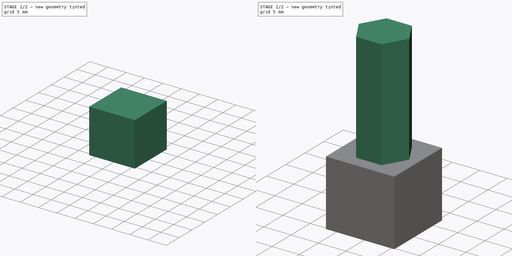
[diagram: build sequence overview — one tinted view per stage of 2, left to right]
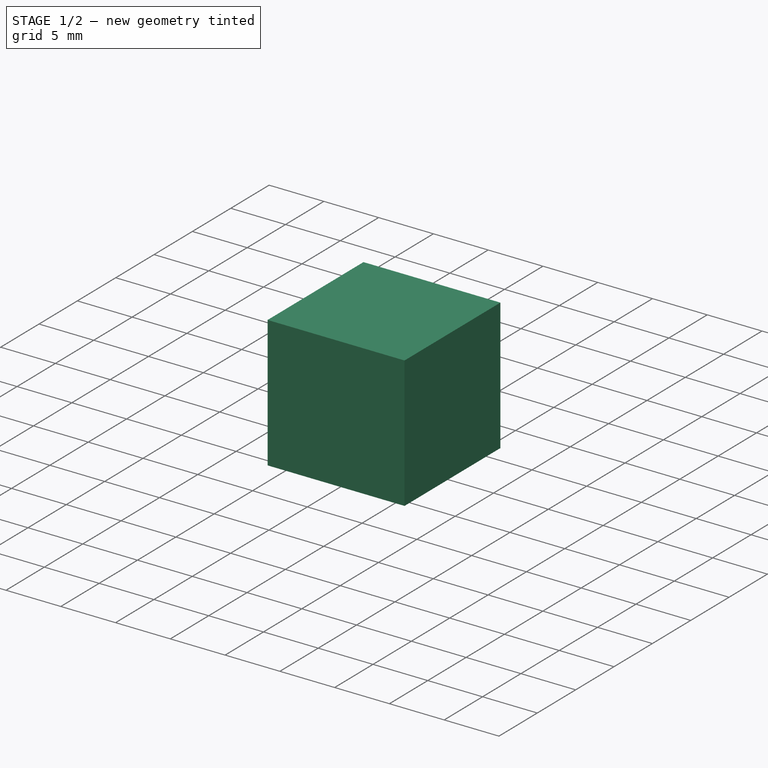
[diagram: stage 1 of 2 — iso view after this stage's code; geometry added in this stage tinted green]
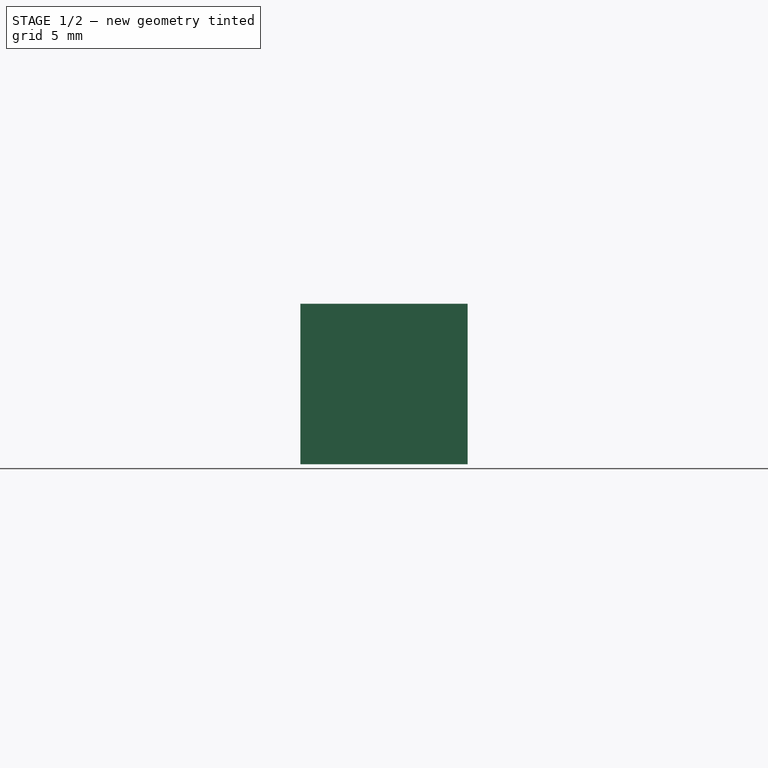
[diagram: stage 1 of 2 — front view after this stage's code; geometry added in this stage tinted green]
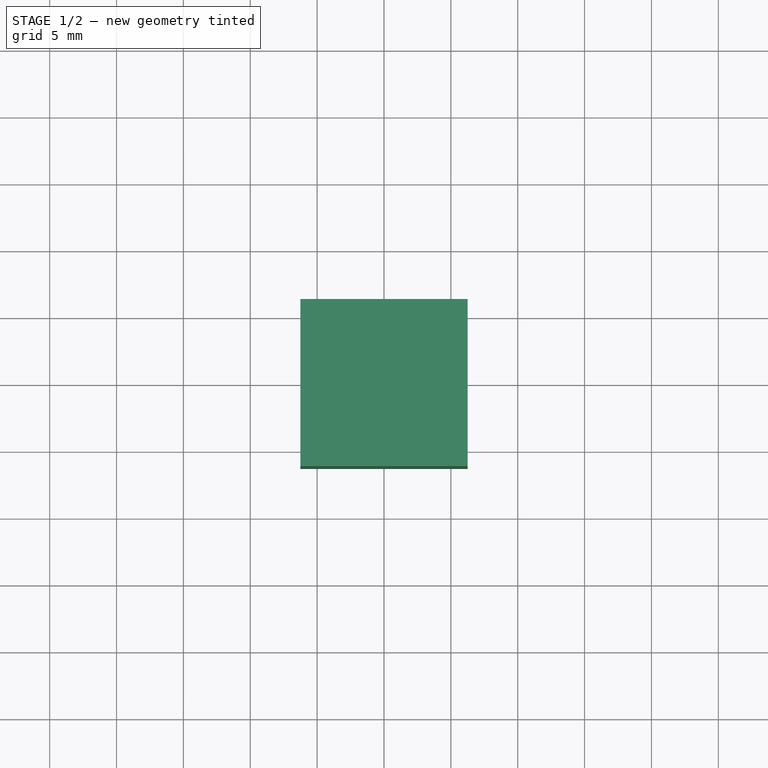
[diagram: stage 1 of 2 — top view after this stage's code; geometry added in this stage tinted green]
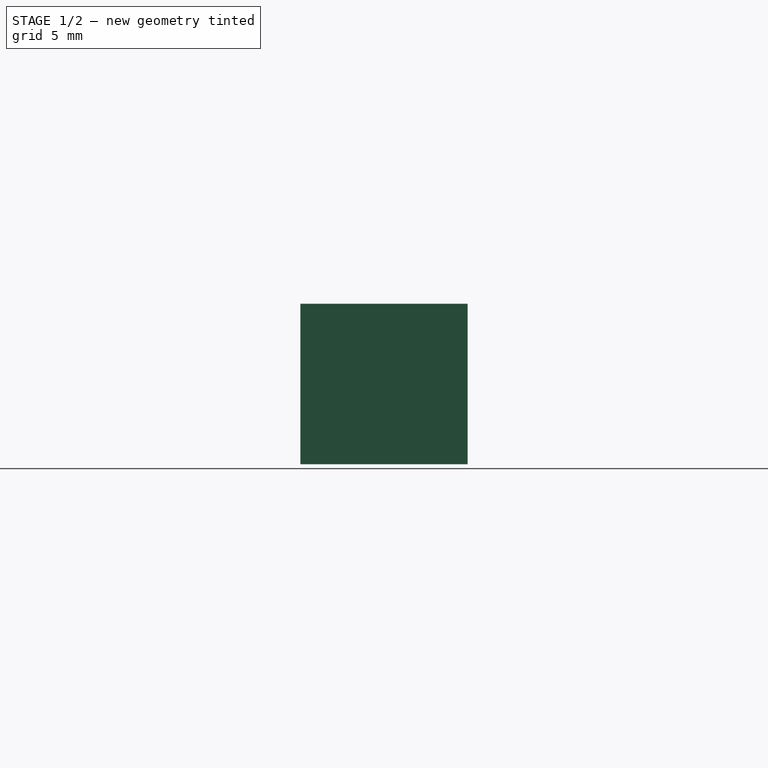
[diagram: stage 1 of 2 — right view after this stage's code; geometry added in this stage tinted green]
FCSTD DOCUMENT  (FreeCAD 1.0R39285 (Git))
Label: Hex Adapter
License: All rights reserved
LicenseURL: http://en.wikipedia.org/wiki/All_rights_reserved
objects: Sketcher::SketchObject×2, PartDesign::Pad×2, Spreadsheet::Sheet×1, PartDesign::Body×1
note: 11 computed .brp shape members not serialized (recipe doc carries the construction recipe); baked Part::Feature solids carry a one-line shape summary decoded from their .brp

FEATURE [Spreadsheet::Sheet] Spreadsheet
  cells = A1='hex_distance_between_flats; B1(hex_distance_between_flats)=8; A2='square_distance_between_flats; B2(square_distance_between_flats)=12.5; A3='hex_length; B3(hex_length)=20; A4='square_length; B4(square_length)=12
FEATURE [Sketcher::SketchObject] Sketch
  ArcFitTolerance = 1e-06
  AttachmentSupport = -> [XY_Plane]
  FullyConstrained = true
  MakeInternals = false
  MapMode = 5
  expr: Constraints[10] = Spreadsheet.square_distance_between_flats / 2
  expr: Constraints[11] = Spreadsheet.square_distance_between_flats / 2
  expr: Constraints[8] = Spreadsheet.square_distance_between_flats
  expr: Constraints[9] = Spreadsheet.square_distance_between_flats
  sketch-geometry (4):
    g0: LineSegment StartX=-6.25 StartY=6.25 StartZ=0 EndX=-6.25 EndY=-6.25 EndZ=0
    g1: LineSegment StartX=-6.25 StartY=-6.25 StartZ=0 EndX=6.25 EndY=-6.25 EndZ=0
    g2: LineSegment StartX=6.25 StartY=-6.25 StartZ=0 EndX=6.25 EndY=6.25 EndZ=0
    g3: LineSegment StartX=6.25 StartY=6.25 StartZ=0 EndX=-6.25 EndY=6.25 EndZ=0
  constraints (12):
    c: Coincident(g0,g1)
    c: Coincident(g1,g2)
    c: Coincident(g2,g3)
    c: Coincident(g3,g0)
    c: Vertical(g0)
    c: Vertical(g2)
    c: Horizontal(g1)
    c: Horizontal(g3)
    c: DistanceY(g0,g0) = 12.5
    c: DistanceX(g3,g3) = 12.5
    c: DistanceX(g0,g-1) = 6.25
    c: DistanceY(g0,g-1) = 6.25
FEATURE [PartDesign::Pad] Pad
  Direction = (0,0,1)
  Length = 12
  Length2 = 10
  Profile = -> Sketch
  ReferenceAxis = -> Sketch [N_Axis]
  Suppressed = false
  Type = 0
  expr: Length = Spreadsheet.square_length
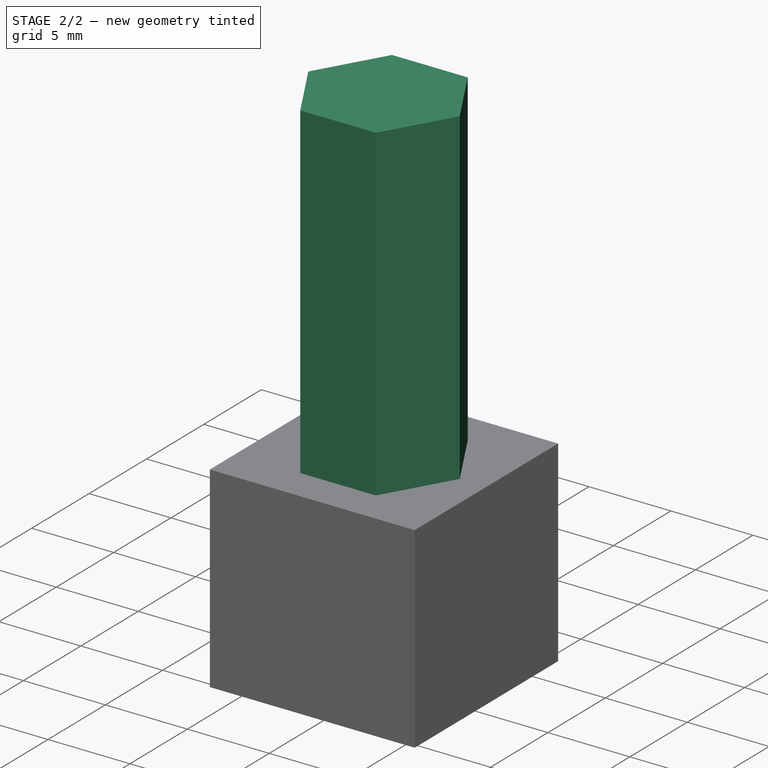
[diagram: stage 2 of 2 — iso view after this stage's code; geometry added in this stage tinted green]
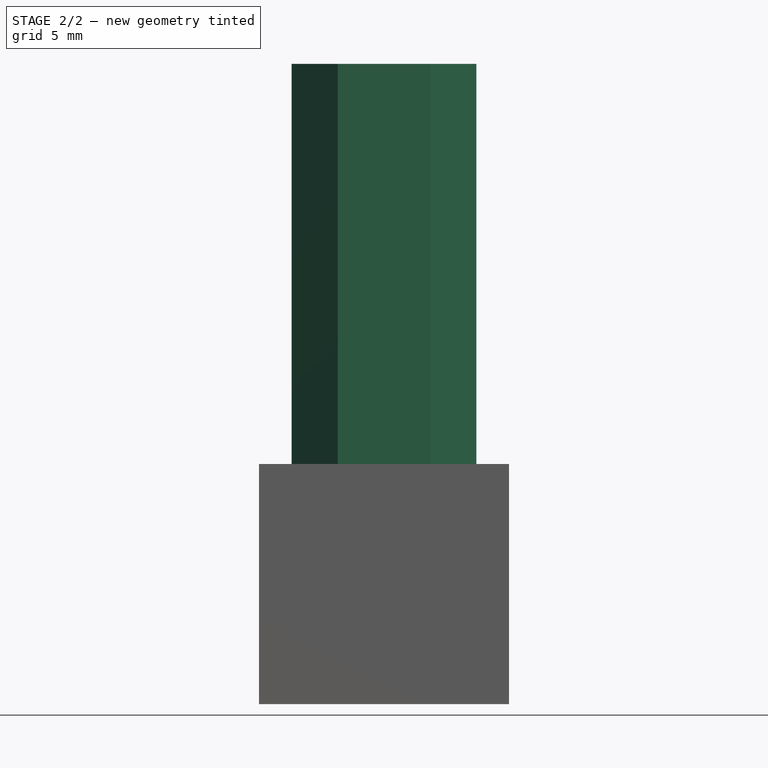
[diagram: stage 2 of 2 — front view after this stage's code; geometry added in this stage tinted green]
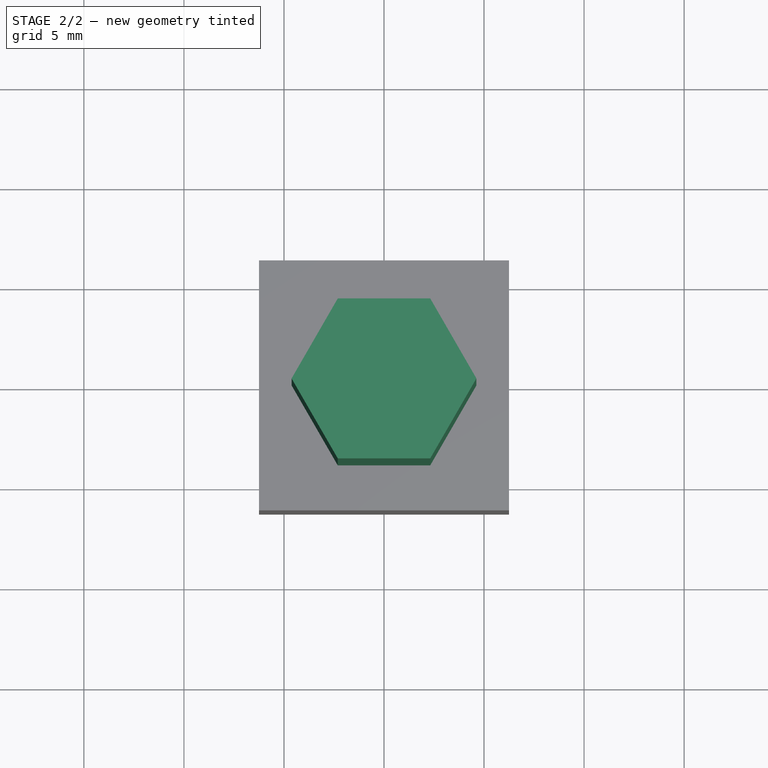
[diagram: stage 2 of 2 — top view after this stage's code; geometry added in this stage tinted green]
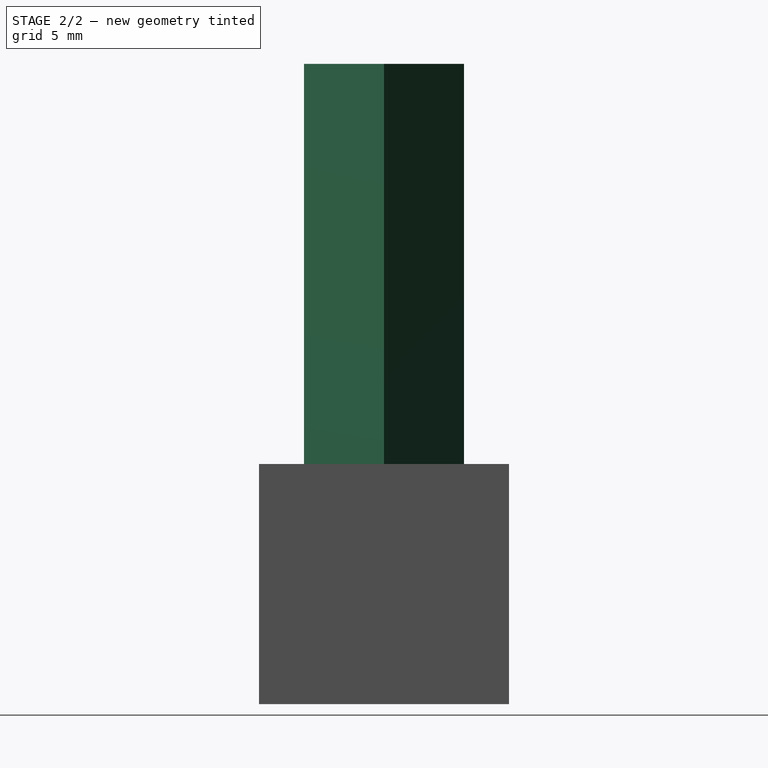
[diagram: stage 2 of 2 — right view after this stage's code; geometry added in this stage tinted green]
FEATURE [Sketcher::SketchObject] Sketch001
  ArcFitTolerance = 1e-06
  AttachmentSupport = -> [Pad]
  FullyConstrained = true
  MakeInternals = false
  MapMode = 5
  Placement = pos=(0,0,12) rot=(0,0,1;0rad)
  expr: Constraints[19] = Spreadsheet.hex_distance_between_flats
  sketch-geometry (7):
    g0: LineSegment StartX=-2.3094 StartY=4 StartZ=0 EndX=-4.6188 EndY=2e-16 EndZ=0
    g1: LineSegment StartX=-4.6188 StartY=0 StartZ=0 EndX=-2.3094 EndY=-4 EndZ=0
    g2: LineSegment StartX=-2.3094 StartY=-4 StartZ=0 EndX=2.3094 EndY=-4 EndZ=0
    g3: LineSegment StartX=2.3094 StartY=-4 StartZ=0 EndX=4.6188 EndY=-5e-16 EndZ=0
    g4: LineSegment StartX=4.6188 StartY=-3e-16 StartZ=0 EndX=2.3094 EndY=4 EndZ=0
    g5: LineSegment StartX=2.3094 StartY=4 StartZ=0 EndX=-2.3094 EndY=4 EndZ=0
    g6: Circle [constr] CenterX=0 CenterY=0 CenterZ=0 NormalX=0 NormalY=0 NormalZ=1 AngleXU=0 Radius=4.6188
  constraints (16):
    c: Coincident(g0,g1)
    c: Coincident(g1,g2)
    c: Coincident(g2,g3)
    c: Coincident(g3,g4)
    c: Coincident(g4,g5)
    c: Coincident(g5,g0)
    c: Equal(g0, g1-g5) x5
    c: PointOnObject(g0,g6)
    c: PointOnObject(g1,g6)
    c: PointOnObject(g2,g6)
    c: PointOnObject(g3,g6)
    c: PointOnObject(g4,g6)
    c: PointOnObject(g5,g6)
    c: Coincident(g6,g-1)
    c: Horizontal(g0,g6)
    c: DistanceY(g1,g0) = 8
FEATURE [PartDesign::Pad] Pad001
  BaseFeature = -> Pad
  Direction = (0,0,1)
  Length = 20
  Length2 = 10
  Profile = -> Sketch001
  ReferenceAxis = -> Sketch001 [N_Axis]
  Suppressed = false
  Type = 0
  expr: Length = Spreadsheet.hex_length
FEATURE [PartDesign::Body] Body
  AllowCompound = false
  Group = -> [Sketch,Pad,Sketch001,Pad001]
  Origin = -> Origin
  Tip = -> Pad001
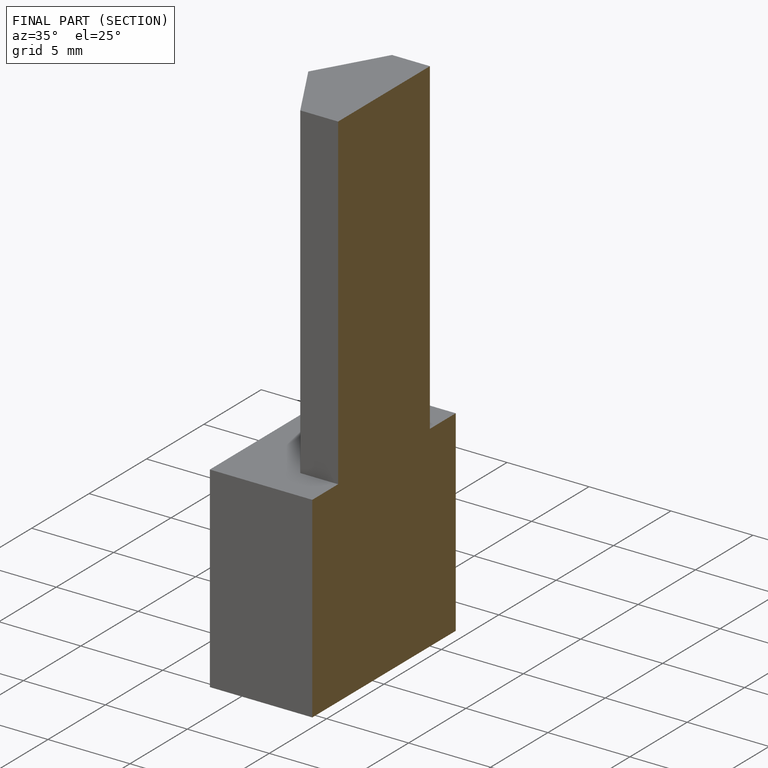
[diagram: finished part — half-section view (interior)]
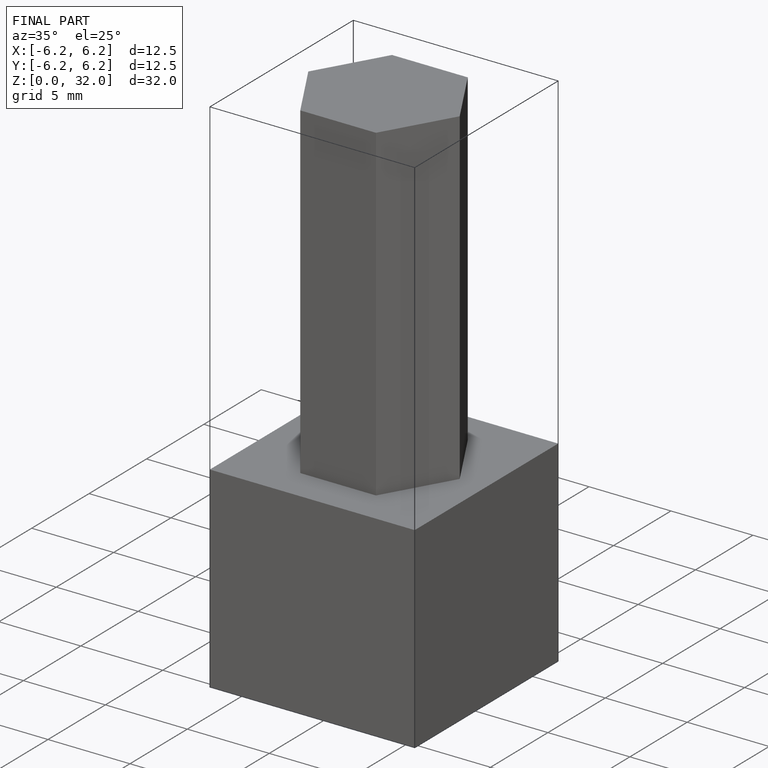
[diagram: finished part — iso view with bounding-box wireframe]
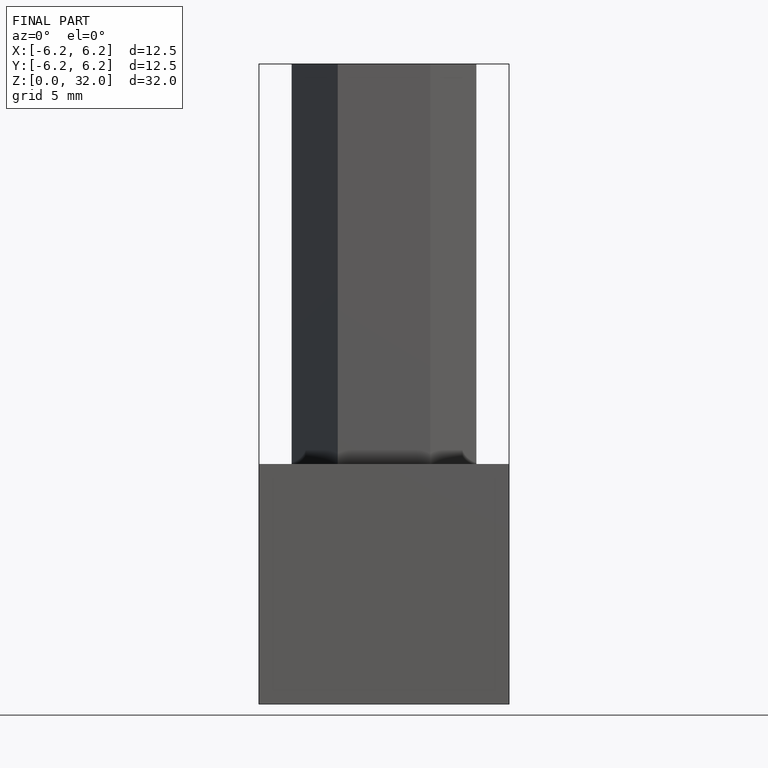
[diagram: finished part — front view with bounding-box wireframe]
